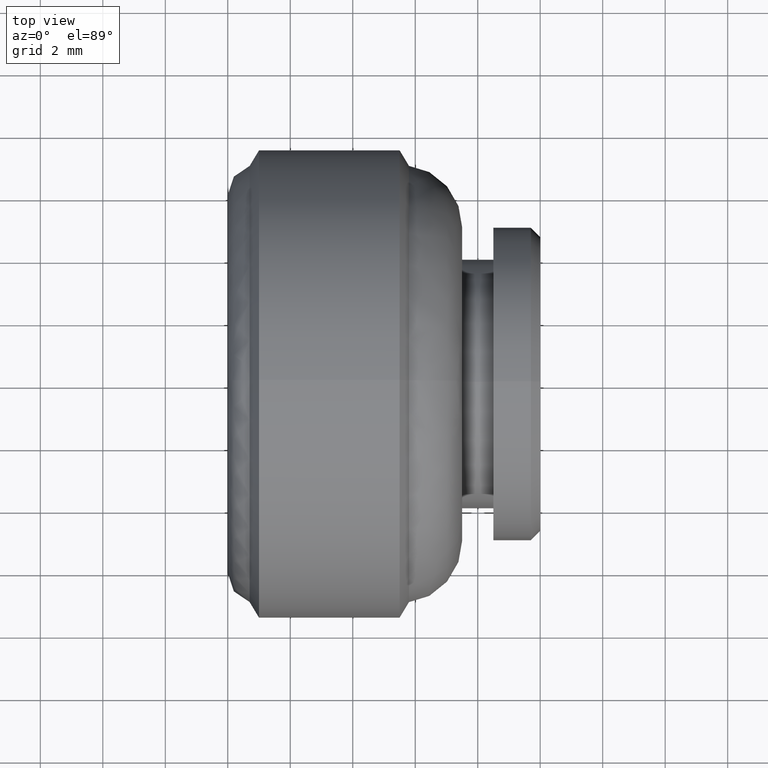
[diagram: clean part render]
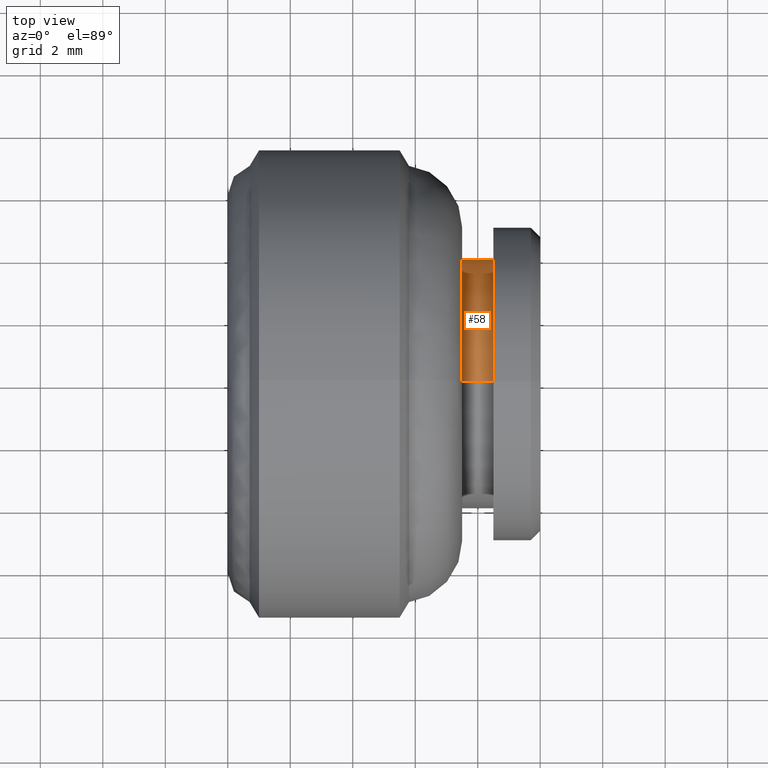
[diagram: same view with one face highlighted and labeled with its STEP entity id]
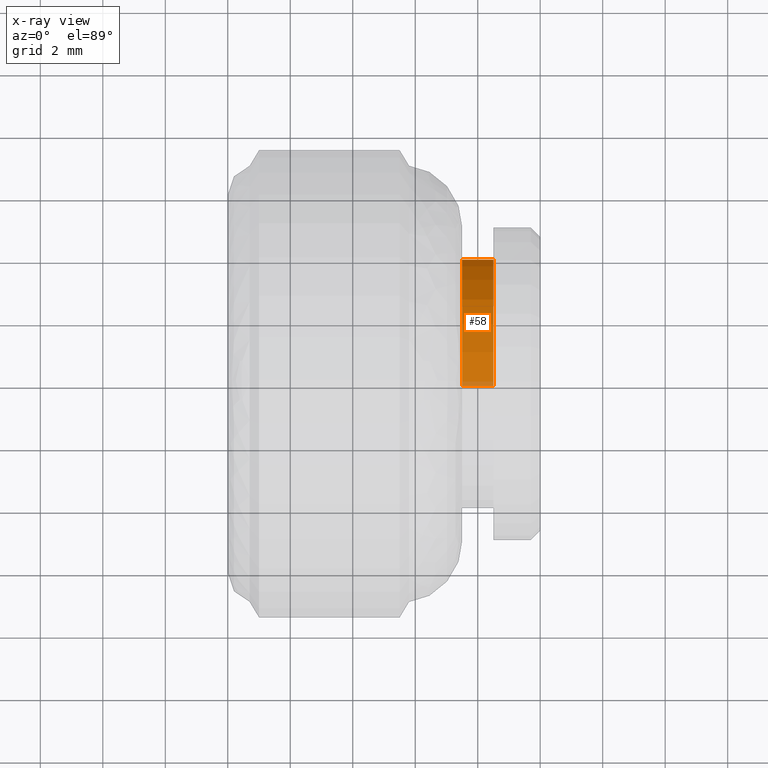
[diagram: x-ray of the same camera — body ghosted, the highlighted face saturated]
A machine part, top view. The second image highlights one B-rep face of the part: STEP entity #58.
The next image is the same camera in x-ray: the body ghosted, the highlighted face saturated — about 4% of this face is hidden behind the body in this view.
In plain terms, the highlighted cylindrical surface (partial cylindrical patch) has radius 4 mm, axis along (1, -0, -0).
Its self-contained STEP definition (entity closure, byte-faithful):
#58=ADVANCED_FACE('',(#254),#253,.T.);
#253=CYLINDRICAL_SURFACE('',#517,4.00000000000E+00);
#254=FACE_OUTER_BOUND('',#518,.T.);
#514=CARTESIAN_POINT('',(0.00000000000E+00,0.00000000000E+00,0.00000000000E+00));
#515=DIRECTION('',(1.00000000000E+00,-0.00000000000E+00,-0.00000000000E+00));
#516=DIRECTION('',(-0.00000000000E+00,-0.00000000000E+00,-1.00000000000E+00));
#517=AXIS2_PLACEMENT_3D('',#514,#515,#516);
#518=EDGE_LOOP('',(#750,#751,#752,#753));
#750=ORIENTED_EDGE('',*,*,#805,.T.);
#751=ORIENTED_EDGE('',*,*,#836,.F.);
#752=ORIENTED_EDGE('',*,*,#808,.F.);
#753=ORIENTED_EDGE('',*,*,#837,.T.);
#805=EDGE_CURVE('',#899,#898,#906,.T.);
#808=EDGE_CURVE('',#926,#927,#928,.T.);
#836=EDGE_CURVE('',#927,#898,#1109,.T.);
#837=EDGE_CURVE('',#926,#899,#1115,.T.);
#898=VERTEX_POINT('',#1267);
#899=VERTEX_POINT('',#1268);
#906=CIRCLE('',#1276,4.00000000000E+00);
#926=VERTEX_POINT('',#1287);
#927=VERTEX_POINT('',#1288);
#928=CIRCLE('',#1292,4.00000000000E+00);
#1109=(BOUNDED_CURVE() B_SPLINE_CURVE(1,(#1386,#1387),.UNSPECIFIED.,.F.,.F.) B_SPLINE_CURVE_WITH_KNOTS((2,2),(8.33332935974E-02,9.16666633252E-01),.UNSPECIFIED.) CURVE() GEOMETRIC_REPRESENTATION_ITEM() RATIONAL_B_SPLINE_CURVE((1.00000000000E+00,1.00000000000E+00)) REPRESENTATION_ITEM('') );
#1115=(BOUNDED_CURVE() B_SPLINE_CURVE(1,(#1388,#1389),.UNSPECIFIED.,.F.,.F.) B_SPLINE_CURVE_WITH_KNOTS((2,2),(8.33333333333E-02,9.16666666667E-01),.UNSPECIFIED.) CURVE() GEOMETRIC_REPRESENTATION_ITEM() RATIONAL_B_SPLINE_CURVE((7.50000000000E-01,7.50000000000E-01)) REPRESENTATION_ITEM('') );
#1267=CARTESIAN_POINT('',(-1.50000000000E+00,4.44089209850E-16,-4.00000000000E+00));
#1268=CARTESIAN_POINT('',(-1.50000000000E+00,0.00000000000E+00,4.00000000000E+00));
#1273=CARTESIAN_POINT('',(-1.50000000000E+00,0.00000000000E+00,0.00000000000E+00));
#1274=DIRECTION('',(-1.00000000000E+00,0.00000000000E+00,0.00000000000E+00));
#1275=DIRECTION('',(0.00000000000E+00,-1.22460635382E-16,1.00000000000E+00));
#1276=AXIS2_PLACEMENT_3D('',#1273,#1274,#1275);
#1287=CARTESIAN_POINT('',(-2.50000000000E+00,0.00000000000E+00,4.00000000000E+00));
#1288=CARTESIAN_POINT('',(-2.50000000000E+00,4.44089209850E-16,-4.00000000000E+00));
#1289=CARTESIAN_POINT('',(-2.50000000000E+00,0.00000000000E+00,0.00000000000E+00));
#1290=DIRECTION('',(-1.00000000000E+00,0.00000000000E+00,0.00000000000E+00));
#1291=DIRECTION('',(0.00000000000E+00,-1.22460635382E-16,1.00000000000E+00));
#1292=AXIS2_PLACEMENT_3D('',#1289,#1290,#1291);
#1386=CARTESIAN_POINT('',(-2.50000004768E+00,0.00000000000E+00,-4.00000000000E+00));
#1387=CARTESIAN_POINT('',(-1.50000004010E+00,0.00000000000E+00,-4.00000000000E+00));
#1388=CARTESIAN_POINT('',(-2.50000000000E+00,-1.48029736617E-16,4.00000000000E+00));
#1389=CARTESIAN_POINT('',(-1.50000000000E+00,-1.48029736617E-16,4.00000000000E+00));